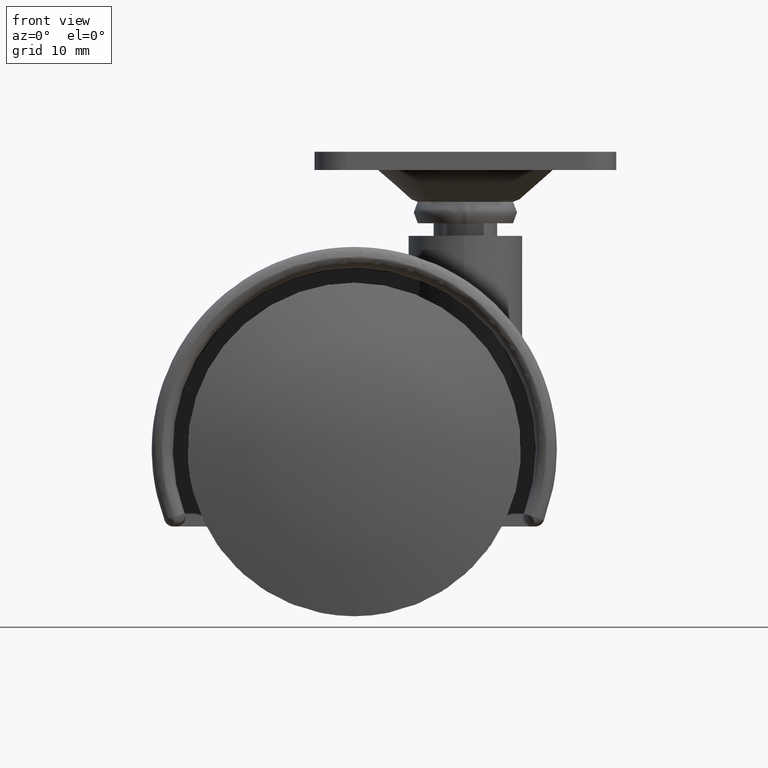
[diagram: clean part render]
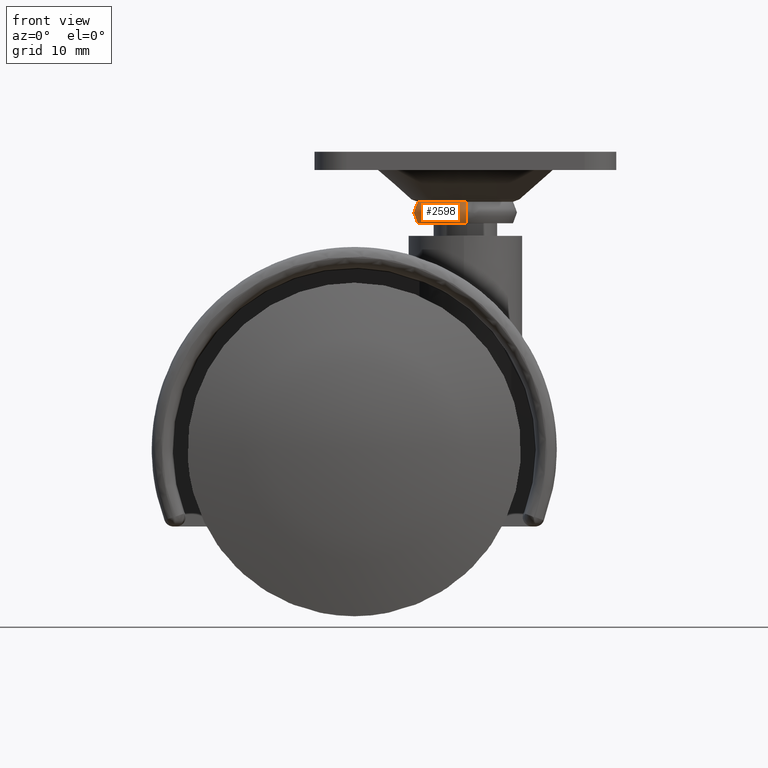
[diagram: same view with one face highlighted and labeled with its STEP entity id]
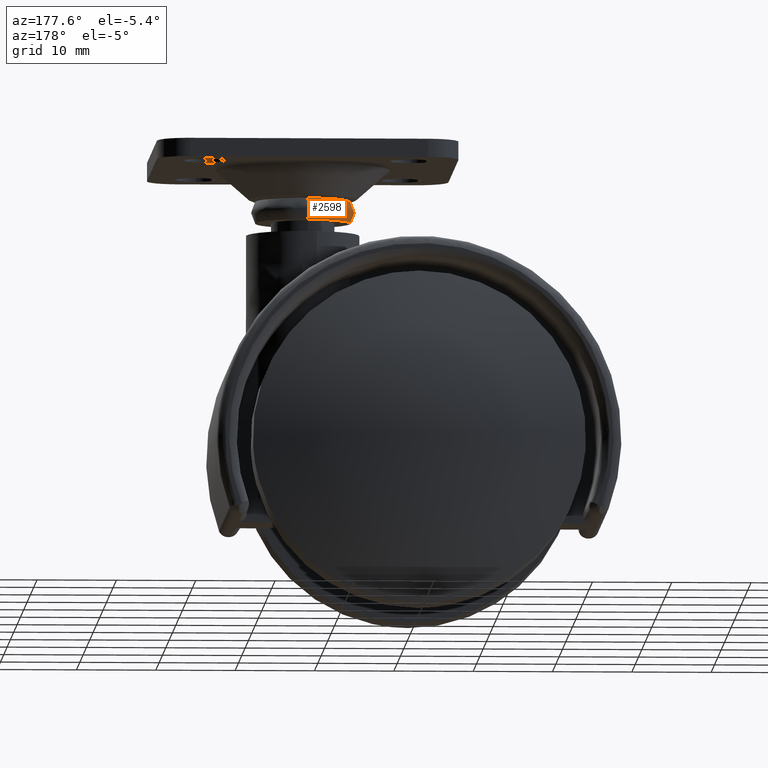
[diagram: same view with one face highlighted and labeled with its STEP entity id]
A machine part, front view. The second image highlights one B-rep face of the part: STEP entity #2598.
A second angle (auxiliary view) of the same face is appended — the face is thin or edge-on in the first view.
In plain terms, the highlighted face is a freeform B-spline surface patch.
Its self-contained STEP definition (entity closure, byte-faithful):
#2291=CARTESIAN_POINT('',(10.003926750643931,4.475646920463525,31.200000000000010));
#2292=VERTEX_POINT('',#2291);
#2306=CARTESIAN_POINT('',(7.999998000000002,0.0,31.199999999999999));
#2307=VERTEX_POINT('',#2306);
#2308=CARTESIAN_POINT('',(7.999998000000002,0.0,31.199999999999999));
#2309=CARTESIAN_POINT('',(7.999998000000002,2.686443570479291,31.199999999999996));
#2310=CARTESIAN_POINT('',(10.003926750643934,4.475646920463525,31.200000000000010));
#2318=(BOUNDED_CURVE()B_SPLINE_CURVE(2,(#2308,#2309,#2310),.UNSPECIFIED.,.F.,.U.)B_SPLINE_CURVE_WITH_KNOTS((3,3),(0.0,0.133534809438315),.UNSPECIFIED.)CURVE()GEOMETRIC_REPRESENTATION_ITEM()RATIONAL_B_SPLINE_CURVE((1.0,0.843554239359883,0.854236117395849))REPRESENTATION_ITEM(''));
#2319=EDGE_CURVE('',#2307,#2292,#2318,.T.);
#2321=CARTESIAN_POINT('',(14.075394252298301,-5.999526306534214,31.199999951693620));
#2322=VERTEX_POINT('',#2321);
#2323=CARTESIAN_POINT('',(14.075394252298297,-5.999526306534214,31.199999951693613));
#2324=CARTESIAN_POINT('',(14.037697620429874,-6.000000000000100,31.199999999999996));
#2325=CARTESIAN_POINT('',(13.999998000000099,-6.000000000000100,31.199999999999999));
#2326=CARTESIAN_POINT('',(7.999998000000002,-6.000000000000100,31.199999999999996));
#2327=CARTESIAN_POINT('',(7.999998000000002,0.0,31.199999999999999));
#2335=(BOUNDED_CURVE()B_SPLINE_CURVE(2,(#2323,#2324,#2325,#2326,#2327),.UNSPECIFIED.,.F.,.U.)B_SPLINE_CURVE_WITH_KNOTS((3,2,3),(0.747784295190242,0.750000000000000,1.0),.UNSPECIFIED.)CURVE()GEOMETRIC_REPRESENTATION_ITEM()RATIONAL_B_SPLINE_CURVE((0.994854293960415,0.997404140345318,1.0,0.707106781186547,1.0))REPRESENTATION_ITEM(''));
#2336=EDGE_CURVE('',#2322,#2307,#2335,.T.);
#2409=CARTESIAN_POINT('',(13.581598476637110,5.985394083774793,31.199999951540260));
#2410=VERTEX_POINT('',#2409);
#2426=CARTESIAN_POINT('',(10.003926750643934,4.475646920463525,31.200000000000010));
#2427=CARTESIAN_POINT('',(11.534596176130133,5.842301574387554,31.200000000000003));
#2428=CARTESIAN_POINT('',(13.581598476637106,5.985394083774793,31.199999951540260));
#2436=(BOUNDED_CURVE()B_SPLINE_CURVE(2,(#2426,#2427,#2428),.UNSPECIFIED.,.F.,.U.)B_SPLINE_CURVE_WITH_KNOTS((3,3),(0.133534809438316,0.237833685902463),.UNSPECIFIED.)CURVE()GEOMETRIC_REPRESENTATION_ITEM()RATIONAL_B_SPLINE_CURVE((0.854236117395849,0.862579319309751,0.972879875048911))REPRESENTATION_ITEM(''));
#2437=EDGE_CURVE('',#2292,#2410,#2436,.T.);
#2475=CARTESIAN_POINT('',(14.075394250828040,-5.999526295636300,28.500000035591821));
#2476=VERTEX_POINT('',#2475);
#2477=CARTESIAN_POINT('',(14.075394252298299,-5.999526306534214,31.199999951693616));
#2478=CARTESIAN_POINT('',(14.089958058196983,-7.158417143656268,29.849999977914390));
#2479=CARTESIAN_POINT('',(14.075394250828046,-5.999526295636301,28.500000035591814));
#2487=(BOUNDED_CURVE()B_SPLINE_CURVE(2,(#2477,#2478,#2479),.UNSPECIFIED.,.F.,.U.)B_SPLINE_CURVE_WITH_KNOTS((3,3),(-1.707550535694345,-0.292449446740211),.UNSPECIFIED.)CURVE()GEOMETRIC_REPRESENTATION_ITEM()RATIONAL_B_SPLINE_CURVE((0.892598351919381,0.677254994879517,0.892598357265433))REPRESENTATION_ITEM(''));
#2488=EDGE_CURVE('',#2322,#2476,#2487,.T.);
#2505=CARTESIAN_POINT('',(13.581598478609839,5.985394072918933,28.500000035685229));
#2506=VERTEX_POINT('',#2505);
#2522=CARTESIAN_POINT('',(13.581598476637101,5.985394083774793,31.199999951540264));
#2523=CARTESIAN_POINT('',(13.500778880222148,7.141555088343279,29.849999977810256));
#2524=CARTESIAN_POINT('',(13.581598478609839,5.985394072918933,28.500000035685225));
#2532=(BOUNDED_CURVE()B_SPLINE_CURVE(2,(#2522,#2523,#2524),.UNSPECIFIED.,.F.,.U.)B_SPLINE_CURVE_WITH_KNOTS((3,3),(-1.707550535482468,-0.292449446869262),.UNSPECIFIED.)CURVE()GEOMETRIC_REPRESENTATION_ITEM()RATIONAL_B_SPLINE_CURVE((0.872520066718331,0.662020686162916,0.872520071968768))REPRESENTATION_ITEM(''));
#2533=EDGE_CURVE('',#2410,#2506,#2532,.T.);
#2538=CARTESIAN_POINT('',(14.074263779734947,-5.909571886641778,31.298218143563513));
#2539=CARTESIAN_POINT('',(8.164691893093170,-5.983837666376626,31.298218143563510));
#2540=CARTESIAN_POINT('',(8.090426113358323,-0.074265779734850,31.298218143563513));
#2541=CARTESIAN_POINT('',(8.020292968798801,5.506458759756232,31.298218143563492));
#2542=CARTESIAN_POINT('',(13.587871797173282,5.895651557068991,31.298218143563503));
#2543=CARTESIAN_POINT('',(14.092040853591522,-7.324152010416198,29.850000465171306));
#2544=CARTESIAN_POINT('',(6.767888843175320,-7.416194864007614,29.850000465171298));
#2545=CARTESIAN_POINT('',(6.675845989583904,-0.092042853591418,29.850000465171306));
#2546=CARTESIAN_POINT('',(6.588925004176565,6.824545291801304,29.850000465171298));
#2547=CARTESIAN_POINT('',(13.489220736455449,7.306899557652801,29.850000465171298));
#2548=CARTESIAN_POINT('',(14.074263785578710,-5.909572351648796,28.401782332501153));
#2549=CARTESIAN_POINT('',(8.164691433929912,-5.983838137227401,28.401782332501156));
#2550=CARTESIAN_POINT('',(8.090425648351307,-0.074265785578608,28.401782332501153));
#2551=CARTESIAN_POINT('',(8.020292498273214,5.506459193043452,28.401782332501170));
#2552=CARTESIAN_POINT('',(13.587871764744266,5.895652020980659,28.401782332501167));
#2560=(BOUNDED_SURFACE()B_SPLINE_SURFACE(2,2,((#2538,#2543,#2548),(#2539,#2544,#2549),(#2540,#2545,#2550),(#2541,#2546,#2551),(#2542,#2547,#2552)),.UNSPECIFIED.,.F.,.F.,.U.)B_SPLINE_SURFACE_WITH_KNOTS((3,2,3),(3,3),(0.0,10.769552621700560,21.108323138533098),(0.0,3.377101426422049),.UNSPECIFIED.)GEOMETRIC_REPRESENTATION_ITEM()RATIONAL_B_SPLINE_SURFACE(((0.915185883333194,0.654667525997646,0.915185763615389),(0.647134144151102,0.462919847055556,0.647134059497831),(0.915185883333194,0.654667525997646,0.915185763615389),(0.657856213718386,0.470589754213240,0.657856127662533),(0.894599509764009,0.639941304254894,0.894599392739161)))REPRESENTATION_ITEM('')SURFACE());
#2561=ORIENTED_EDGE('',*,*,#2319,.T.);
#2562=ORIENTED_EDGE('',*,*,#2437,.T.);
#2563=ORIENTED_EDGE('',*,*,#2533,.T.);
#2564=CARTESIAN_POINT('',(7.999998000000010,0.0,28.500000000000000));
#2565=VERTEX_POINT('',#2564);
#2566=CARTESIAN_POINT('',(7.999998000000010,0.0,28.500000000000000));
#2567=CARTESIAN_POINT('',(7.999998000000010,5.595221065230414,28.500000000000000));
#2568=CARTESIAN_POINT('',(13.581598478609841,5.985394072918933,28.500000035685225));
#2576=(BOUNDED_CURVE()B_SPLINE_CURVE(2,(#2566,#2567,#2568),.UNSPECIFIED.,.F.,.U.)B_SPLINE_CURVE_WITH_KNOTS((3,3),(0.0,0.237833685971882),.UNSPECIFIED.)CURVE()GEOMETRIC_REPRESENTATION_ITEM()RATIONAL_B_SPLINE_CURVE((1.0,0.721360504693710,0.972879875195739))REPRESENTATION_ITEM(''));
#2577=EDGE_CURVE('',#2565,#2506,#2576,.T.);
#2578=ORIENTED_EDGE('',*,*,#2577,.F.);
#2579=CARTESIAN_POINT('',(14.075394250828039,-5.999526295636300,28.500000035591817));
#2580=CARTESIAN_POINT('',(14.037697619096619,-6.000000000000092,28.499999999999996));
#2581=CARTESIAN_POINT('',(13.999998000000099,-6.000000000000091,28.500000000000000));
#2582=CARTESIAN_POINT('',(7.999998000000010,-6.000000000000091,28.500000000000007));
#2583=CARTESIAN_POINT('',(7.999998000000010,0.0,28.500000000000000));
#2591=(BOUNDED_CURVE()B_SPLINE_CURVE(2,(#2579,#2580,#2581,#2582,#2583),.UNSPECIFIED.,.F.,.U.)B_SPLINE_CURVE_WITH_KNOTS((3,2,3),(0.747784295268397,0.750000000000000,1.0),.UNSPECIFIED.)CURVE()GEOMETRIC_REPRESENTATION_ITEM()RATIONAL_B_SPLINE_CURVE((0.994854294140298,0.997404140436883,1.0,0.707106781186548,1.0))REPRESENTATION_ITEM(''));
#2592=EDGE_CURVE('',#2476,#2565,#2591,.T.);
#2593=ORIENTED_EDGE('',*,*,#2592,.F.);
#2594=ORIENTED_EDGE('',*,*,#2488,.F.);
#2595=ORIENTED_EDGE('',*,*,#2336,.T.);
#2596=EDGE_LOOP('',(#2561,#2562,#2563,#2578,#2593,#2594,#2595));
#2597=FACE_OUTER_BOUND('',#2596,.T.);
#2598=ADVANCED_FACE('',(#2597),#2560,.T.);